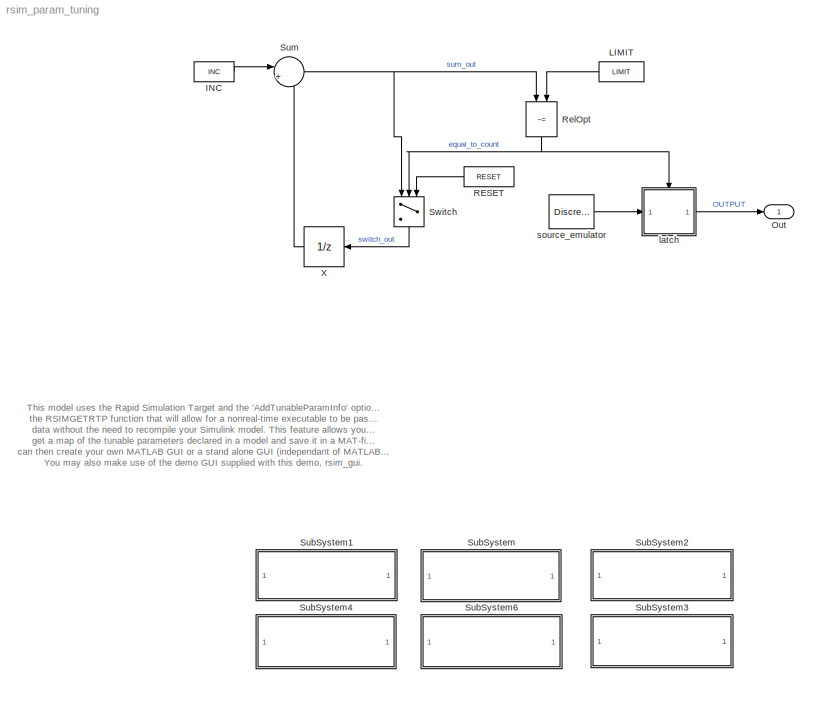
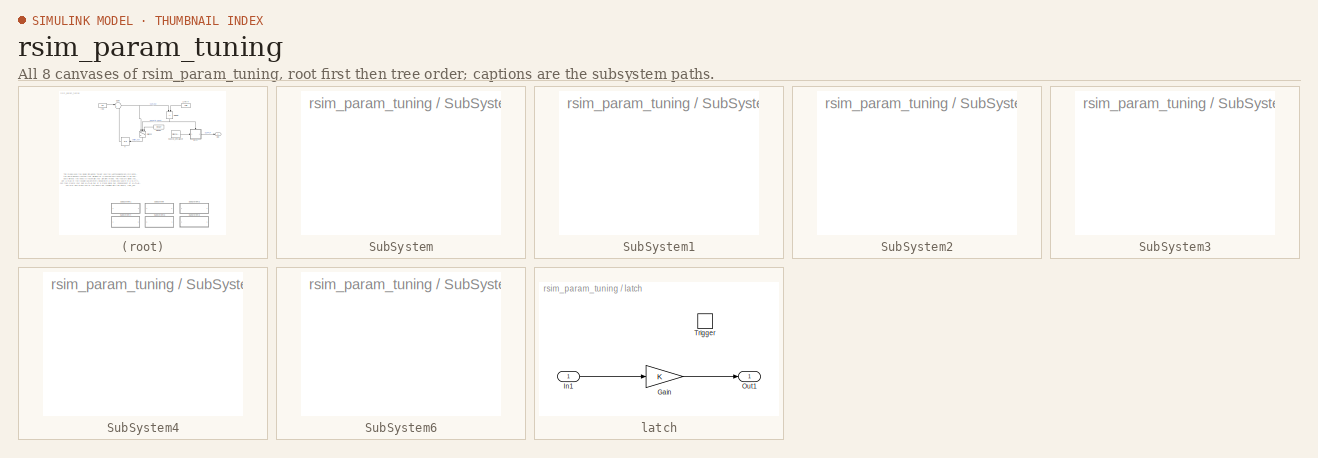
[diagram: thumbnail index - all 8 canvases of the model, root first then tree order]
MODEL rsim_param_tuning
KIND model
CONFIG AbsTol = auto
CONFIG FixedStep = 1
CONFIG MaxStep = auto
CONFIG MinStep = auto
CONFIG PreLoadFcn = clear;INC=uint8(1);LIMIT=uint8(16);K=int32(2);RESET=uint8(0);
CONFIG RelTol = 1e-3
CONFIG Solver = VariableStepDiscrete
CONFIG SolverMode = Auto
CONFIG StartFcn = platform_finder('')
CONFIG StartTime = 0.0
CONFIG StopTime = 48
BLOCK [Constant] INC
  Value = INC
BLOCK [Constant] LIMIT
  Value = LIMIT
BLOCK [Outport] Out
BLOCK [Constant] RESET
  Value = RESET
BLOCK [RelationalOperator] RelOpt
  Operator = ~=
BLOCK [SubSystem] SubSystem
  AttributesFormatString = <path>
  MaskDisplay = disp('2. Run RSIMGETRTP\\nwith the option')
  MaskIconFrame = on
  MaskIconOpaque = on
  MaskIconRotate = none
  MaskIconUnits = autoscale
  OpenFcn = disp(' ')                                                                                 \ndisp('% ----- STEP 2 : Running the RSIMGETRTP command ----- %')                           \ndisp('>>rtp=rsimgetrtp(''rsim_param_tuning'',''AddTunableParamInfo'',''on'')')            \nrtp=rsimgetrtp('rsim_param_tuning','AddTunableParamInfo','on')                            \ndisp('% ----- Notice the ''map''...<+452ch>
  Ports = []
  TreatAsAtomicUnit = off
BLOCK [SubSystem] SubSystem1
  AttributesFormatString = <path>
  MaskDisplay = disp('1. Build Model with \\n RSim Target')
  MaskIconFrame = on
  MaskIconOpaque = on
  MaskIconRotate = none
  MaskIconUnits = autoscale
  OpenFcn = platform_finder('')                                                       \ndisp('% ----- STEP 1: Building the Model with Real-Time Workshop ----- %')\nrtwbuild('rsim_param_tuning');
  Ports = []
  TreatAsAtomicUnit = off
BLOCK [SubSystem] SubSystem2
  AttributesFormatString = <path>
  MaskDisplay = disp('3. Save RTP structure \\n in a MAT-File')
  MaskIconFrame = on
  MaskIconOpaque = on
  MaskIconRotate = none
  MaskIconUnits = autoscale
  OpenFcn = platform_finder('')                                                   \ndisp('% ----- STEP 3: Saving the rtp Structure in a MAT-File ----- %')\ndisp('>>save rsim_rtp_struct rtp')                                    \nsave rsim_rtp_struct rtp
  Ports = []
  TreatAsAtomicUnit = off
BLOCK [SubSystem] SubSystem3
  AttributesFormatString = \\n\\n
  MaskDisplay = disp('More Info')
  MaskIconFrame = on
  MaskIconOpaque = on
  MaskIconRotate = none
  MaskIconUnits = autoscale
  OpenFcn = edit('rsim_gui.m')        \nedit('rsim_gui_sa.m')     \nedit('rtwtargetsrsim.txt')
  Ports = []
  TreatAsAtomicUnit = off
BLOCK [SubSystem] SubSystem4
  AttributesFormatString = <path>
  MaskDisplay = disp('4. Open the MATLAB \\n RSIM GUI Demo')
  MaskIconFrame = on
  MaskIconOpaque = on
  MaskIconRotate = none
  MaskIconUnits = autoscale
  OpenFcn = disp(' ')                    \nplatform_finder('matlab_gui')
  Ports = []
  TreatAsAtomicUnit = off
BLOCK [SubSystem] SubSystem6
  AttributesFormatString = <path>
  MaskDisplay = disp('Open the Standalone \\n RSIM GUI Demo')
  MaskIconFrame = on
  MaskIconOpaque = on
  MaskIconRotate = none
  MaskIconUnits = autoscale
  OpenFcn = disp(' ')                        \nplatform_finder('standalone_gui')\n
  Ports = []
  TreatAsAtomicUnit = off
BLOCK [Sum] Sum
  IconShape = round
  Inputs = |++
  Ports = [2, 1]
  SaturateOnIntegerOverflow = off
BLOCK [Switch] Switch
  SaturateOnIntegerOverflow = off
  Threshold = .5
BLOCK [UnitDelay] X
  RTWStateStorageClass = ExportedGlobal
  StateIdentifier = X
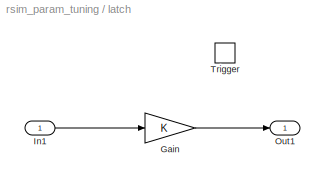
BLOCK [SubSystem] latch
  Ports = [1, 1, 0, 1]
  TreatAsAtomicUnit = on
BLOCK [Gain] latch/Gain
  Gain = K
  SaturateOnIntegerOverflow = off
BLOCK [Inport] latch/In1
BLOCK [Outport] latch/Out1
  InitialOutput = 0
BLOCK [TriggerPort] latch/Trigger
  Ports = []
  ZeroCross = off
BLOCK [DiscretePulseGenerator] source_emulator
  Amplitude = int32(1)
  Period = 4
  PulseWidth = 2
ANNOTATION (root): This model uses the Rapid Simulation Target and the 'AddTunableParamInfo' option in \nthe RSIMGETRTP function that will allow for a nonreal-time executable to be passed new\ndata without the need to recompile your Simulink model. This feature allows you to easily \nget a map of the tunable parameters declared in a model and save it in a MAT-file. You \ncan then create your own MATLAB GUI or a stan...<+566ch>
LINE INC:1 -> Sum:1
LINE LIMIT:1 -> RelOpt:2
LINE RESET:1 -> Switch:3
NET RelOpt:1 -> Switch:2, latch:trigger
NET Sum:1 -> RelOpt:1, Switch:1
LINE Switch:1 -> X:1
LINE X:1 -> Sum:2
LINE latch/Gain:1 -> latch/Out1:1
LINE latch/In1:1 -> latch/Gain:1
LINE latch:1 -> Out:1
LINE source_emulator:1 -> latch:1
note: NET lines group one-source signal fan-out (src -> all destinations, sorted); 1:1 wires keep LINE
note: 5 file-system paths scrubbed to <path> (not preserved elsewhere — flat text is the only slx artifact)
